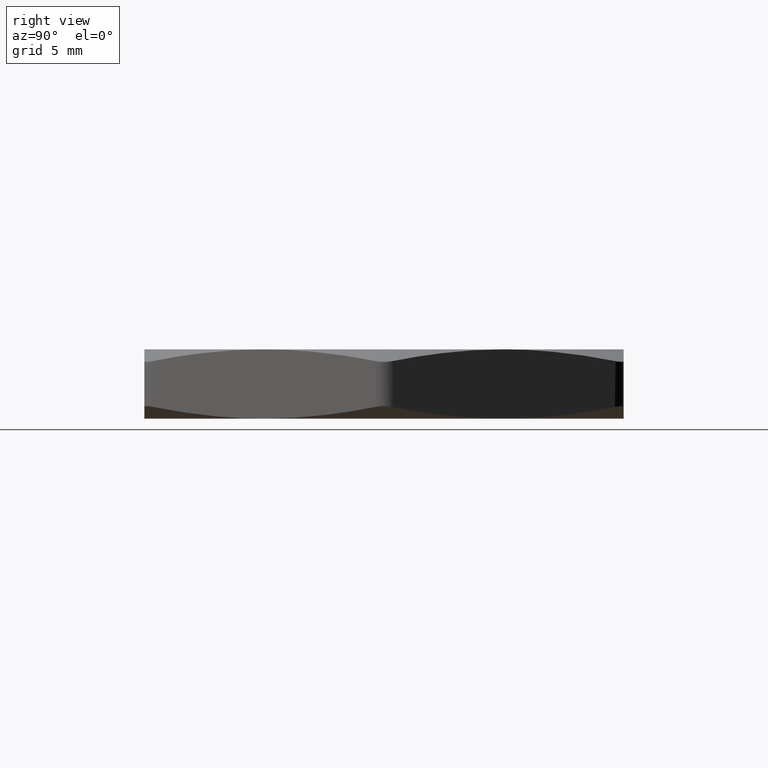
[diagram: clean part render]
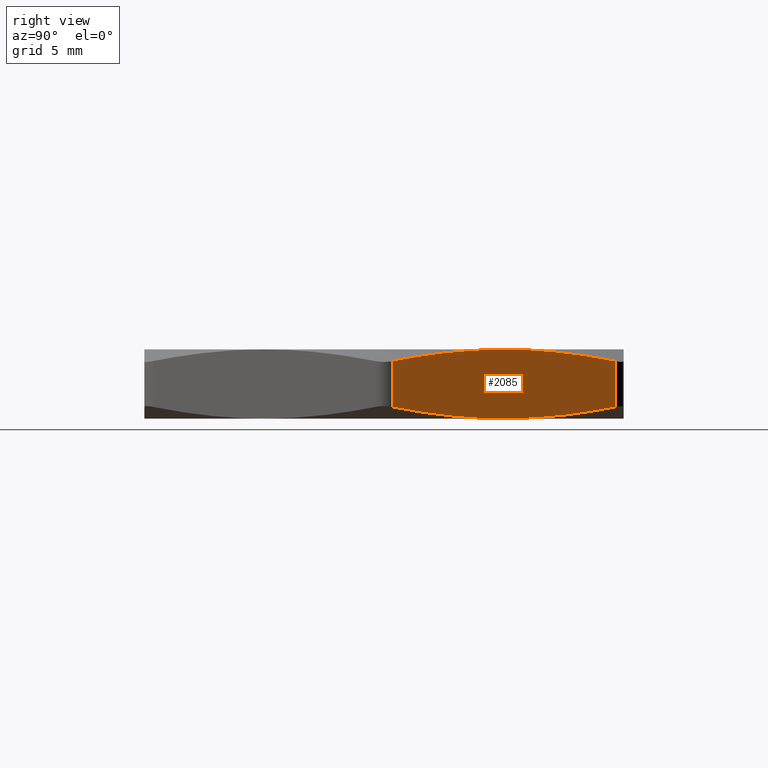
[diagram: same view with one face highlighted and labeled with its STEP entity id]
A machine part, right view. The second image highlights one B-rep face of the part: STEP entity #2085.
In plain terms, the highlighted planar face has unit normal (-0.866, -0.5, 0).
Its self-contained STEP definition (entity closure, byte-faithful):
#161 = VERTEX_POINT ( 'NONE', #2416 ) ;
#166 = EDGE_CURVE ( 'NONE', #161, #1784, #2410, .T. ) ;
#1052 = CARTESIAN_POINT ( 'NONE',  ( 0.3594005425705422100, 0.2075000000000000500, 0.1200000000000000000 ) ) ;
#1372 = CARTESIAN_POINT ( 'NONE',  ( 0.3594005425705422100, 0.2075000000000000500, 0.0000000000000000000 ) ) ;
#1373 = CARTESIAN_POINT ( 'NONE',  ( 0.3408772214340417000, 0.2395833333333334000, 7.870069903622632400E-018 ) ) ;
#1374 = CARTESIAN_POINT ( 'NONE',  ( 0.3223539002975412400, 0.2716666666666667800, 0.001834672312144979700 ) ) ;
#1375 = CARTESIAN_POINT ( 'NONE',  ( 0.2853072580245402700, 0.3358333333333334300, 0.008810984912747526000 ) ) ;
#1376 = CARTESIAN_POINT ( 'NONE',  ( 0.2667839368880399200, 0.3679166666666665600, 0.01393562675250458400 ) ) ;
#1377 = CARTESIAN_POINT ( 'NONE',  ( 0.2482606157515393500, 0.3999999999999999700, 0.02030207602509552500 ) ) ;
#1378 = CARTESIAN_POINT ( 'NONE',  ( 0.2482606157515393500, 0.3999999999999999700, 0.02030207602509552500 ) ) ;
#1379 = B_SPLINE_CURVE_WITH_KNOTS ( 'NONE', 3,
 ( #1377, #1376, #1375, #1374, #1373, #1372 ),
 .UNSPECIFIED., .F., .F.,
 ( 4, 2, 4 ),
 ( 2.309401076763871400E-007, 0.002823185081310351400, 0.005646139222513025000 ),
 .UNSPECIFIED. ) ;
#1397 = DIRECTION ( 'NONE',  ( 0.4999999999999998300, -0.8660254037844388200, 0.0000000000000000000 ) ) ;
#1398 = DIRECTION ( 'NONE',  ( -0.8660254037844388200, -0.4999999999999998300, 0.0000000000000000000 ) ) ;
#1399 = CARTESIAN_POINT ( 'NONE',  ( 0.4792007234273895100, 8.852865548451347600E-017, 0.1200000000000000000 ) ) ;
#1400 = AXIS2_PLACEMENT_3D ( 'NONE', #1399, #1398, #1397 ) ;
#1401 = PLANE ( 'NONE',  #1400 ) ;
#1408 = FACE_OUTER_BOUND ( 'NONE', #2086, .T. ) ;
#1556 = CARTESIAN_POINT ( 'NONE',  ( 0.2482606157515393200, 0.3999999999999999700, 0.09969792397490447000 ) ) ;
#1557 = DIRECTION ( 'NONE',  ( 0.0000000000000000000, 0.0000000000000000000, 1.000000000000000000 ) ) ;
#1558 = VECTOR ( 'NONE', #1557, 39.37007874015748100 ) ;
#1559 = CARTESIAN_POINT ( 'NONE',  ( 0.2482606157515393200, 0.3999999999999999700, 0.1200000000000000000 ) ) ;
#1560 = LINE ( 'NONE', #1559, #1558 ) ;
#1567 = CARTESIAN_POINT ( 'NONE',  ( 0.3594005425705422100, 0.2075000000000000500, 0.0000000000000000000 ) ) ;
#1587 = CARTESIAN_POINT ( 'NONE',  ( 0.4705404693895451400, 0.01500000000000005500, 0.02030207602509552500 ) ) ;
#1588 = CARTESIAN_POINT ( 'NONE',  ( 0.4520171482530446200, 0.04708333333333356700, 0.01393562675250457600 ) ) ;
#1589 = CARTESIAN_POINT ( 'NONE',  ( 0.4334938271165440500, 0.07916666666666678800, 0.008810984912747496500 ) ) ;
#1590 = CARTESIAN_POINT ( 'NONE',  ( 0.3964471848435432400, 0.1433333333333334500, 0.001834672312144964700 ) ) ;
#1591 = CARTESIAN_POINT ( 'NONE',  ( 0.3779238637070425600, 0.1754166666666666900, 4.952141443593053100E-018 ) ) ;
#1592 = CARTESIAN_POINT ( 'NONE',  ( 0.3594005425705422100, 0.2075000000000000500, 0.0000000000000000000 ) ) ;
#1593 = B_SPLINE_CURVE_WITH_KNOTS ( 'NONE', 3,
 ( #1592, #1591, #1590, #1589, #1588, #1587 ),
 .UNSPECIFIED., .F., .F.,
 ( 4, 2, 4 ),
 ( 0.005646139222513025000, 0.008469093363715696900, 0.01129204750491837100 ),
 .UNSPECIFIED. ) ;
#1594 = CARTESIAN_POINT ( 'NONE',  ( 0.4705404693895451400, 0.01500000000000005500, 0.02030207602509552500 ) ) ;
#1595 = DIRECTION ( 'NONE',  ( 0.0000000000000000000, 0.0000000000000000000, -1.000000000000000000 ) ) ;
#1596 = VECTOR ( 'NONE', #1595, 39.37007874015748100 ) ;
#1597 = CARTESIAN_POINT ( 'NONE',  ( 0.2482606157515393200, 0.3999999999999999700, 0.09969792397490447000 ) ) ;
#1598 = CARTESIAN_POINT ( 'NONE',  ( 0.2667839368880398600, 0.3679166666666667800, 0.1060643732474954400 ) ) ;
#1599 = CARTESIAN_POINT ( 'NONE',  ( 0.2853072580245402700, 0.3358333333333333700, 0.1111890150872524600 ) ) ;
#1600 = CARTESIAN_POINT ( 'NONE',  ( 0.3223539002975413000, 0.2716666666666667800, 0.1181653276878550100 ) ) ;
#1601 = CARTESIAN_POINT ( 'NONE',  ( 0.3408772214340417000, 0.2395833333333333100, 0.1199999999999999300 ) ) ;
#1602 = CARTESIAN_POINT ( 'NONE',  ( 0.3594005425705422100, 0.2075000000000000500, 0.1200000000000000000 ) ) ;
#1603 = CARTESIAN_POINT ( 'NONE',  ( 0.4705404693895451400, 0.01500000000000005300, 0.1200000000000000000 ) ) ;
#1604 = LINE ( 'NONE', #1603, #1596 ) ;
#1605 = B_SPLINE_CURVE_WITH_KNOTS ( 'NONE', 3,
 ( #1602, #1601, #1600, #1599, #1598, #1597 ),
 .UNSPECIFIED., .F., .F.,
 ( 4, 2, 4 ),
 ( 0.005646139222513025000, 0.008469093363715700400, 0.01129204750491837400 ),
 .UNSPECIFIED. ) ;
#1784 = VERTEX_POINT ( 'NONE', #1052 ) ;
#2071 = ORIENTED_EDGE ( 'NONE', *, *, #2072, .F. ) ;
#2072 = EDGE_CURVE ( 'NONE', #2073, #2149, #1379, .T. ) ;
#2073 = VERTEX_POINT ( 'NONE', #1378 ) ;
#2085 = ADVANCED_FACE ( 'NONE', ( #1408 ), #1401, .F. ) ;
#2086 = EDGE_LOOP ( 'NONE', ( #2071, #2150, #2155, #2157, #2158, #2161 ) ) ;
#2149 = VERTEX_POINT ( 'NONE', #1567 ) ;
#2150 = ORIENTED_EDGE ( 'NONE', *, *, #2151, .T. ) ;
#2151 = EDGE_CURVE ( 'NONE', #2073, #2152, #1560, .T. ) ;
#2152 = VERTEX_POINT ( 'NONE', #1556 ) ;
#2155 = ORIENTED_EDGE ( 'NONE', *, *, #2156, .F. ) ;
#2156 = EDGE_CURVE ( 'NONE', #1784, #2152, #1605, .T. ) ;
#2157 = ORIENTED_EDGE ( 'NONE', *, *, #166, .F. ) ;
#2158 = ORIENTED_EDGE ( 'NONE', *, *, #2159, .T. ) ;
#2159 = EDGE_CURVE ( 'NONE', #161, #2160, #1604, .T. ) ;
#2160 = VERTEX_POINT ( 'NONE', #1594 ) ;
#2161 = ORIENTED_EDGE ( 'NONE', *, *, #2162, .F. ) ;
#2162 = EDGE_CURVE ( 'NONE', #2149, #2160, #1593, .T. ) ;
#2401 = CARTESIAN_POINT ( 'NONE',  ( 0.3594005425705422100, 0.2075000000000000500, 0.1200000000000000000 ) ) ;
#2402 = CARTESIAN_POINT ( 'NONE',  ( 0.3779238637070427800, 0.1754166666666667200, 0.1200000000000000200 ) ) ;
#2403 = CARTESIAN_POINT ( 'NONE',  ( 0.3964471848435433000, 0.1433333333333333100, 0.1181653276878550400 ) ) ;
#2404 = CARTESIAN_POINT ( 'NONE',  ( 0.4334938271165442700, 0.07916666666666671800, 0.1111890150872524700 ) ) ;
#2405 = CARTESIAN_POINT ( 'NONE',  ( 0.4520171482530444500, 0.04708333333333338700, 0.1060643732474953900 ) ) ;
#2406 = CARTESIAN_POINT ( 'NONE',  ( 0.4705404693895451400, 0.01500000000000005300, 0.09969792397490447000 ) ) ;
#2410 = B_SPLINE_CURVE_WITH_KNOTS ( 'NONE', 3,
 ( #2406, #2405, #2404, #2403, #2402, #2401 ),
 .UNSPECIFIED., .F., .F.,
 ( 4, 2, 4 ),
 ( 2.309401076758707200E-007, 0.002823185081310350100, 0.005646139222513025000 ),
 .UNSPECIFIED. ) ;
#2416 = CARTESIAN_POINT ( 'NONE',  ( 0.4705404693895451400, 0.01500000000000005300, 0.09969792397490447000 ) ) ;